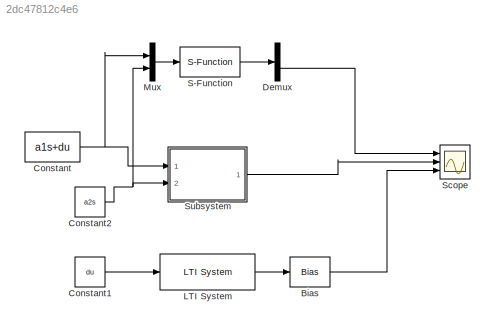
MODEL slx_2dc47812c4e6
KIND model
CONFIG AbsTol = auto
CONFIG EnableMultiTasking = off
CONFIG FixedStep = auto
CONFIG MaxStep = auto
CONFIG MinStep = auto
CONFIG RelTol = 1e-6
CONFIG SampleTimeConstraint = Unconstrained
CONFIG Solver = ode45
CONFIG SolverName = ode45
CONFIG StartTime = 0.0
CONFIG StopTime = 1000
BLOCK [Bias] Bias
  Bias = h2s
  SaturateOnIntegerOverflow = off
BLOCK [Constant] Constant
  Value = a1s+du
BLOCK [Constant] Constant1
  Value = du
BLOCK [Constant] Constant2
  Value = a2s
BLOCK [Demux] Demux
  DisplayOption = bar
  Outputs = 2
  Ports = [1, 2]
BLOCK [Reference] LTI System  REF=cstblocks/LTI System
  Ports = [1, 1]
  SourceBlock = cstblocks/LTI System
  SourceProductBaseCode = CT
  SourceProductName = Control System Toolbox
  SourceType = LTI Block
BLOCK [Mux] Mux
  DisplayOption = bar
  Inputs = 2
  Ports = [2, 1]
BLOCK [S-Function] S-Function
  EnableBusSupport = off
  FunctionName = smodelo
  Parameters = par,h1s,h2s
  Ports = [1, 1]
  SFcnIsStateOwnerBlock = off
  SFunctionDeploymentMode = off
BLOCK [Scope] Scope
  Floating = off
  NumInputPorts = 3
  Ports = [3]
  ScopeSpecificationString = Simulink.scopes.TimeScopeBlockCfg('CurrentConfiguration', extmgr.ConfigurationSet(extmgr.Configuration('Core','General UI',true),extmgr.Configuration('Core','Source UI',true),extmgr.Configuration('Sources','WiredSimulink',true),extmgr.Configuration('Visuals','Time Domain',true,'SerializedDisplays',{struct('MinYLimReal','0.65127','MaxYLimReal','0.65609','YLabelReal','','MinYLimMag','0.65127','MaxYL...<+2631ch>
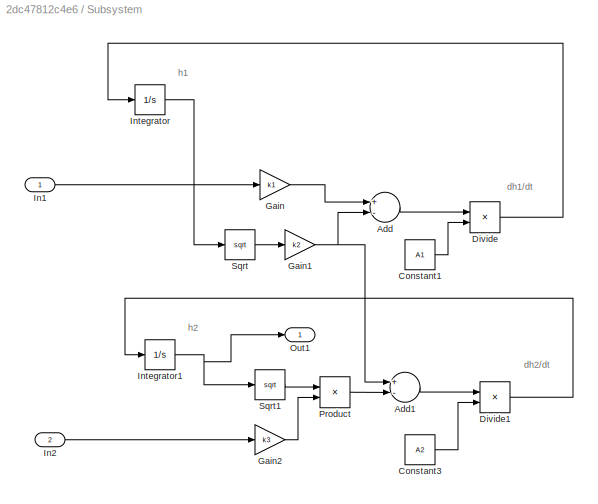
BLOCK [SubSystem] Subsystem
  Ports = [2, 1]
  RequestExecContextInheritance = off
BLOCK [Sum] Subsystem/Add
  InputSameDT = off
  Inputs = +-
  OutDataTypeStr = Inherit: Inherit via internal rule
  Ports = [2, 1]
  SaturateOnIntegerOverflow = off
BLOCK [Sum] Subsystem/Add1
  InputSameDT = off
  Inputs = +-
  OutDataTypeStr = Inherit: Inherit via internal rule
  Ports = [2, 1]
  SaturateOnIntegerOverflow = off
BLOCK [Constant] Subsystem/Constant1
  Value = A1
BLOCK [Constant] Subsystem/Constant3
  Value = A2
BLOCK [Product] Subsystem/Divide
  InputSameDT = off
  Inputs = */
  OutDataTypeStr = Inherit: Inherit via internal rule
  Ports = [2, 1]
  RndMeth = Floor
  SaturateOnIntegerOverflow = off
BLOCK [Product] Subsystem/Divide1
  InputSameDT = off
  Inputs = */
  OutDataTypeStr = Inherit: Inherit via internal rule
  Ports = [2, 1]
  RndMeth = Floor
  SaturateOnIntegerOverflow = off
BLOCK [Gain] Subsystem/Gain
  Gain = k1
  OutDataTypeStr = Inherit: Inherit via internal rule
  ParamDataTypeStr = Inherit: Inherit via internal rule
  SaturateOnIntegerOverflow = off
BLOCK [Gain] Subsystem/Gain1
  Gain = k2
  OutDataTypeStr = Inherit: Inherit via internal rule
  ParamDataTypeStr = Inherit: Inherit via internal rule
  SaturateOnIntegerOverflow = off
BLOCK [Gain] Subsystem/Gain2
  Gain = k3
  OutDataTypeStr = Inherit: Inherit via internal rule
  ParamDataTypeStr = Inherit: Inherit via internal rule
  SaturateOnIntegerOverflow = off
BLOCK [Inport] Subsystem/In1
  IconDisplay = Port number
BLOCK [Inport] Subsystem/In2
  IconDisplay = Port number
  Port = 2
BLOCK [Integrator] Subsystem/Integrator
  InitialCondition = h1s
  Ports = [1, 1]
BLOCK [Integrator] Subsystem/Integrator1
  InitialCondition = h2s
  Ports = [1, 1]
BLOCK [Outport] Subsystem/Out1
  IconDisplay = Port number
BLOCK [Product] Subsystem/Product
  InputSameDT = off
  OutDataTypeStr = Inherit: Inherit via internal rule
  Ports = [2, 1]
  RndMeth = Floor
  SaturateOnIntegerOverflow = off
BLOCK [Sqrt] Subsystem/Sqrt
BLOCK [Sqrt] Subsystem/Sqrt1
ANNOTATION Subsystem: dh1/dt
ANNOTATION Subsystem: dh2/dt
ANNOTATION Subsystem: h1
ANNOTATION Subsystem: h2
LINE Bias:1 -> Scope:3
LINE Constant1:1 -> LTI System:1
NET Constant2:1 -> Mux:2, Subsystem:2
NET Constant:1 -> Mux:1, Subsystem:1
LINE Demux:2 -> Scope:1
LINE LTI System:1 -> Bias:1
LINE Mux:1 -> S-Function:1
LINE S-Function:1 -> Demux:1
LINE Subsystem/Add1:1 -> Subsystem/Divide1:1
LINE Subsystem/Add:1 -> Subsystem/Divide:1
LINE Subsystem/Constant1:1 -> Subsystem/Divide:2
LINE Subsystem/Constant3:1 -> Subsystem/Divide1:2
LINE Subsystem/Divide1:1 -> Subsystem/Integrator1:1
LINE Subsystem/Divide:1 -> Subsystem/Integrator:1
NET Subsystem/Gain1:1 -> Subsystem/Add1:1, Subsystem/Add:2
LINE Subsystem/Gain2:1 -> Subsystem/Product:2
LINE Subsystem/Gain:1 -> Subsystem/Add:1
LINE Subsystem/In1:1 -> Subsystem/Gain:1
LINE Subsystem/In2:1 -> Subsystem/Gain2:1
NET Subsystem/Integrator1:1 -> Subsystem/Out1:1, Subsystem/Sqrt1:1
LINE Subsystem/Integrator:1 -> Subsystem/Sqrt:1
LINE Subsystem/Product:1 -> Subsystem/Add1:2
LINE Subsystem/Sqrt1:1 -> Subsystem/Product:1
LINE Subsystem/Sqrt:1 -> Subsystem/Gain1:1
LINE Subsystem:1 -> Scope:2
note: NET lines group one-source signal fan-out (src -> all destinations, sorted); 1:1 wires keep LINE
